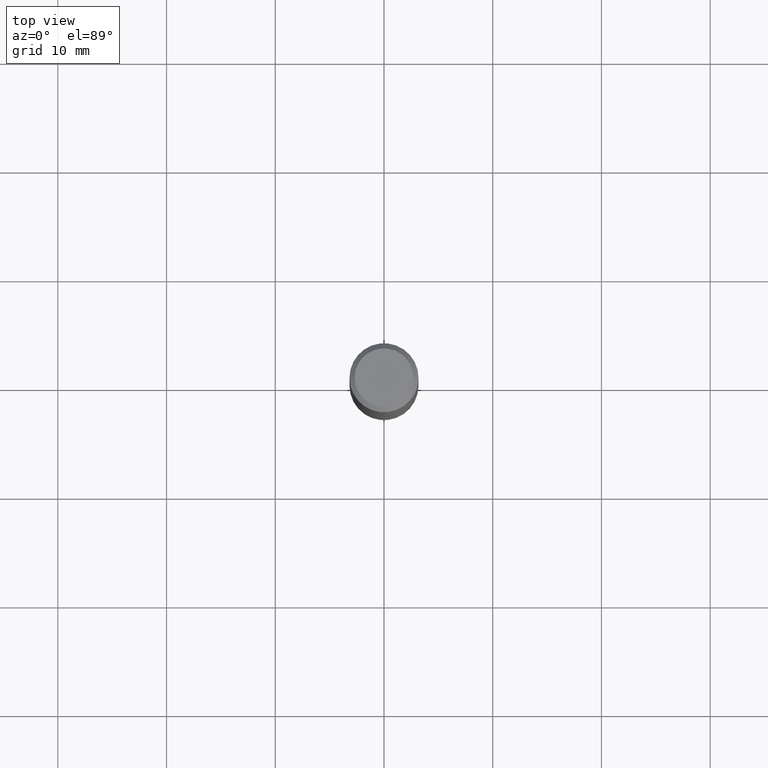
[diagram: clean part render]
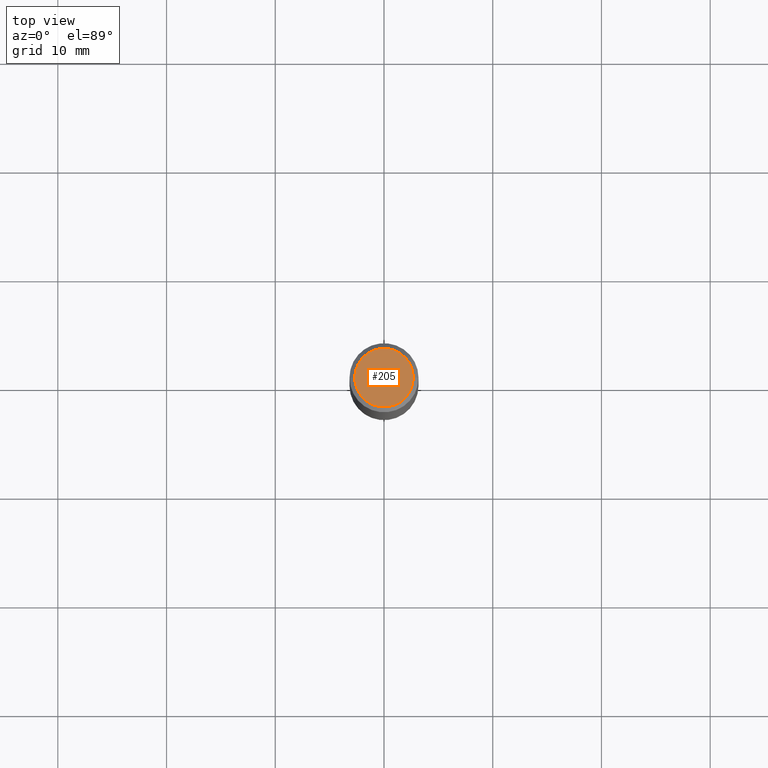
[diagram: same view with one face highlighted and labeled with its STEP entity id]
A machine part, top view. The second image highlights one B-rep face of the part: STEP entity #205.
In plain terms, the highlighted planar face has unit normal (0, -0, -1).
Its self-contained STEP definition (entity closure, byte-faithful):
#26 = VERTEX_POINT ( 'NONE', #454 ) ;
#35 = CARTESIAN_POINT ( 'NONE',  ( -1.591006383764329968E-46, 2.271535455632767580E-32, 6.505936120470314915E-18 ) ) ;
#45 = ORIENTED_EDGE ( 'NONE', *, *, #262, .T. ) ;
#53 = EDGE_LOOP ( 'NONE', ( #45, #427 ) ) ;
#98 = DIRECTION ( 'NONE',  ( 2.438088387897960049E-29, -3.491481338843145188E-15, -1.000000000000000000 ) ) ;
#104 = CARTESIAN_POINT ( 'NONE',  ( -1.591006383764329968E-46, 2.271535455632767580E-32, 6.505936120470314915E-18 ) ) ;
#136 = EDGE_CURVE ( 'NONE', #26, #258, #207, .T. ) ;
#178 = CIRCLE ( 'NONE', #238, 0.1062499999999999972 ) ;
#205 = ADVANCED_FACE ( 'NONE', ( #248 ), #214, .F. ) ;
#207 = CIRCLE ( 'NONE', #219, 0.1062499999999999972 ) ;
#214 = PLANE ( 'NONE',  #229 ) ;
#219 = AXIS2_PLACEMENT_3D ( 'NONE', #35, #226, #488 ) ;
#226 = DIRECTION ( 'NONE',  ( -2.445468806185136597E-29, 3.491481338843145583E-15, 1.000000000000000000 ) ) ;
#229 = AXIS2_PLACEMENT_3D ( 'NONE', #395, #98, #358 ) ;
#230 = DIRECTION ( 'NONE',  ( -2.445468806185136597E-29, 3.491481338843145583E-15, 1.000000000000000000 ) ) ;
#238 = AXIS2_PLACEMENT_3D ( 'NONE', #104, #230, #380 ) ;
#248 = FACE_OUTER_BOUND ( 'NONE', #53, .T. ) ;
#258 = VERTEX_POINT ( 'NONE', #271 ) ;
#262 = EDGE_CURVE ( 'NONE', #258, #26, #178, .T. ) ;
#271 = CARTESIAN_POINT ( 'NONE',  ( -0.1062499999999999972, 7.746724220558198188E-16, 6.505936120465012444E-18 ) ) ;
#358 = DIRECTION ( 'NONE',  ( -1.000000000000000000, 6.982962677686265922E-15, -4.876176775795935793E-29 ) ) ;
#380 = DIRECTION ( 'NONE',  ( 1.000000000000000000, -6.982962677686266711E-15, 4.875930095424100059E-29 ) ) ;
#395 = CARTESIAN_POINT ( 'NONE',  ( -7.955031918821649840E-47, 1.135767727816383790E-32, 3.252968060235157457E-18 ) ) ;
#427 = ORIENTED_EDGE ( 'NONE', *, *, #136, .T. ) ;
#454 = CARTESIAN_POINT ( 'NONE',  ( 0.1062499999999999972, -8.259777185439879685E-16, 6.505936120475796882E-18 ) ) ;
#488 = DIRECTION ( 'NONE',  ( 1.000000000000000000, -6.982962677686266711E-15, 4.875930095424100059E-29 ) ) ;